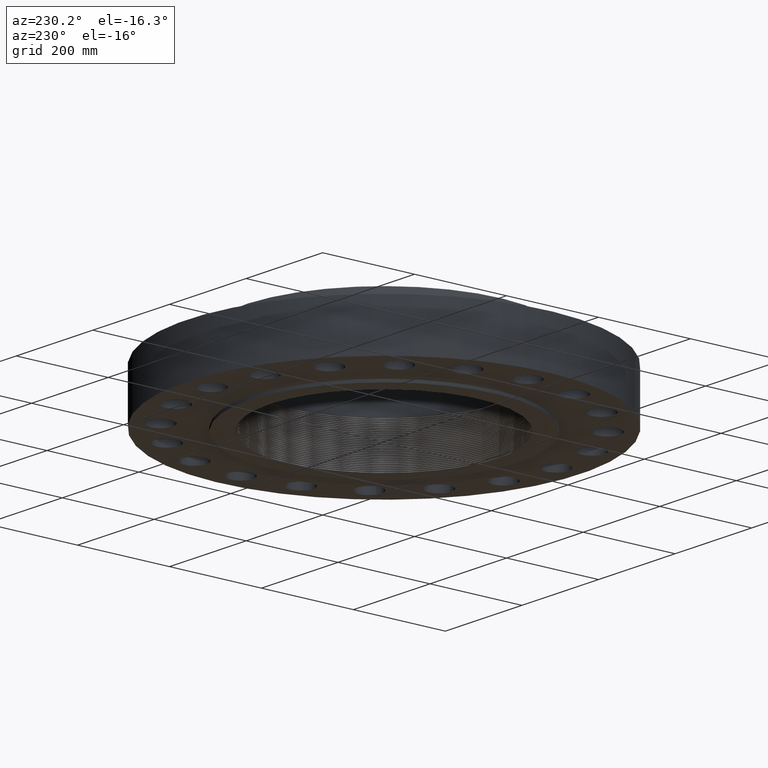
[diagram: clean part render]
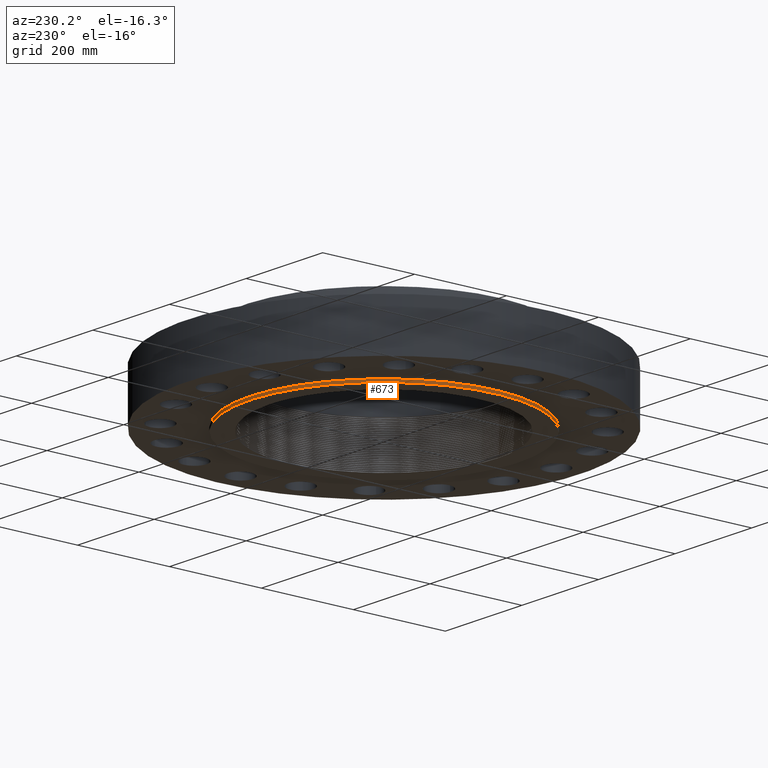
[diagram: same view with one face highlighted and labeled with its STEP entity id]
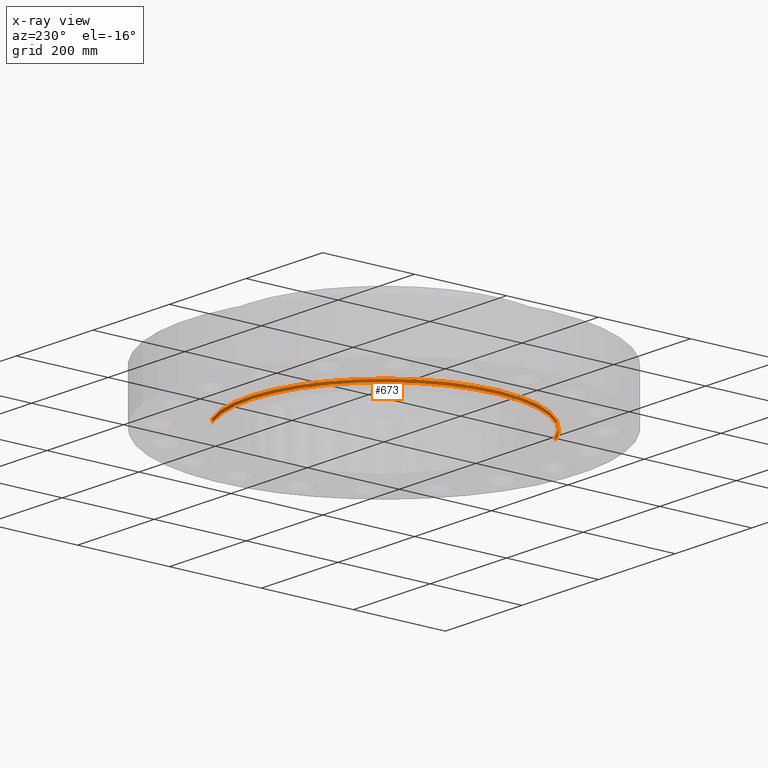
[diagram: x-ray of the same camera — body ghosted, the highlighted face saturated]
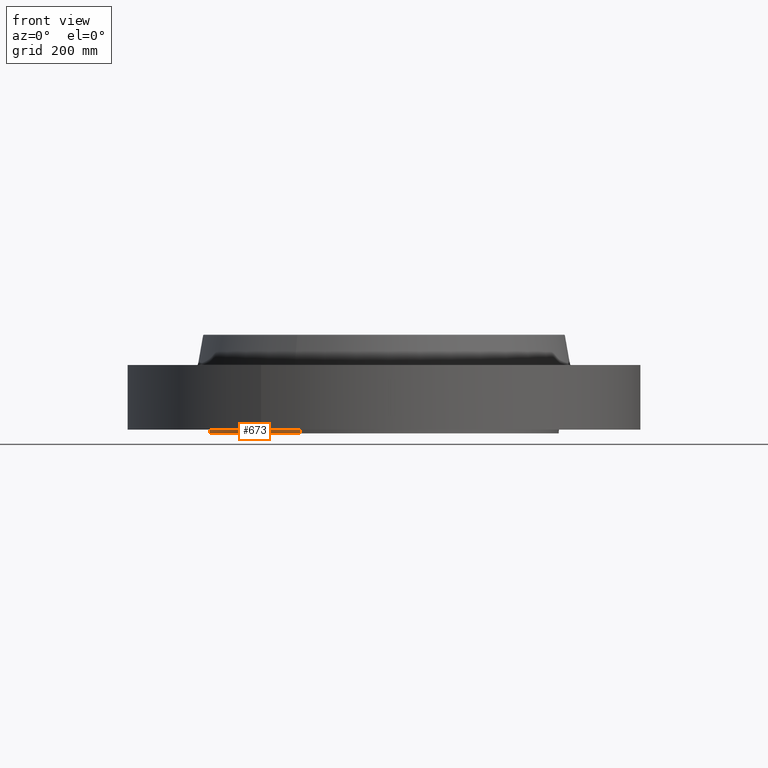
[diagram: same view with one face highlighted and labeled with its STEP entity id]
A machine part, auxiliary view. The second image highlights one B-rep face of the part: STEP entity #673.
The next image is the same camera in x-ray: the body ghosted, the highlighted face saturated — about 0% of this face is hidden behind the body in this view.
A second angle (front view) of the same face is appended — the face is thin or edge-on in the first view.
In plain terms, the highlighted cylindrical surface (partial cylindrical patch) has radius 292.1 mm, axis along (0, 0, -1).
Its self-contained STEP definition (entity closure, byte-faithful):
#208=AXIS2_PLACEMENT_3D('Circle Axis2P3D',#206,#207,$) ;
#646=AXIS2_PLACEMENT_3D('Cylinder Axis2P3D',#643,#644,#645) ;
#657=AXIS2_PLACEMENT_3D('Circle Axis2P3D',#655,#656,$) ;
#201=CARTESIAN_POINT('Vertex',(5.51339369397,10.0921994618,-0.250000000001)) ;
#203=CARTESIAN_POINT('Vertex',(-5.51339369397,-10.0921994618,-0.250000000001)) ;
#206=CARTESIAN_POINT('Axis2P3D Location',(0.,0.,-0.250000000001)) ;
#643=CARTESIAN_POINT('Axis2P3D Location',(0.,0.,3.00000000001)) ;
#648=CARTESIAN_POINT('Line Origine',(-5.51339369397,-10.0921994618,-0.125)) ;
#652=CARTESIAN_POINT('Vertex',(-5.51339369397,-10.0921994618,1.1189649382E-015)) ;
#655=CARTESIAN_POINT('Axis2P3D Location',(0.,0.,1.67844740731E-015)) ;
#659=CARTESIAN_POINT('Vertex',(5.51339369397,10.0921994618,1.1189649382E-015)) ;
#662=CARTESIAN_POINT('Line Origine',(5.51339369397,10.0921994618,-0.125)) ;
#207=DIRECTION('Axis2P3D Direction',(0.,0.,-0.0393700787402)) ;
#644=DIRECTION('Axis2P3D Direction',(0.,0.,-0.0393700787402)) ;
#645=DIRECTION('Axis2P3D XDirection',(0.0188750212049,0.0345504945626,0.)) ;
#649=DIRECTION('Vector Direction',(0.,0.,-0.0393700787402)) ;
#656=DIRECTION('Axis2P3D Direction',(0.,0.,-0.0393700787402)) ;
#663=DIRECTION('Vector Direction',(0.,0.,-0.0393700787402)) ;
#650=VECTOR('Line Direction',#649,0.0393700787402) ;
#664=VECTOR('Line Direction',#663,0.0393700787402) ;
#668=ORIENTED_EDGE('',*,*,#210,.F.) ;
#669=ORIENTED_EDGE('',*,*,#654,.T.) ;
#670=ORIENTED_EDGE('',*,*,#661,.T.) ;
#671=ORIENTED_EDGE('',*,*,#666,.F.) ;
#673=ADVANCED_FACE('PartBody',(#672),#647,.T.) ;
#209=CIRCLE('generated circle',#208,11.5) ;
#658=CIRCLE('generated circle',#657,11.5) ;
#647=CYLINDRICAL_SURFACE('generated cylinder',#646,11.5) ;
#210=EDGE_CURVE('',#204,#202,#209,.T.) ;
#654=EDGE_CURVE('',#204,#653,#651,.F.) ;
#661=EDGE_CURVE('',#653,#660,#658,.T.) ;
#666=EDGE_CURVE('',#202,#660,#665,.F.) ;
#667=EDGE_LOOP('',(#668,#669,#670,#671)) ;
#672=FACE_OUTER_BOUND('',#667,.T.) ;
#651=LINE('Line',#648,#650) ;
#665=LINE('Line',#662,#664) ;
#202=VERTEX_POINT('',#201) ;
#204=VERTEX_POINT('',#203) ;
#653=VERTEX_POINT('',#652) ;
#660=VERTEX_POINT('',#659) ;